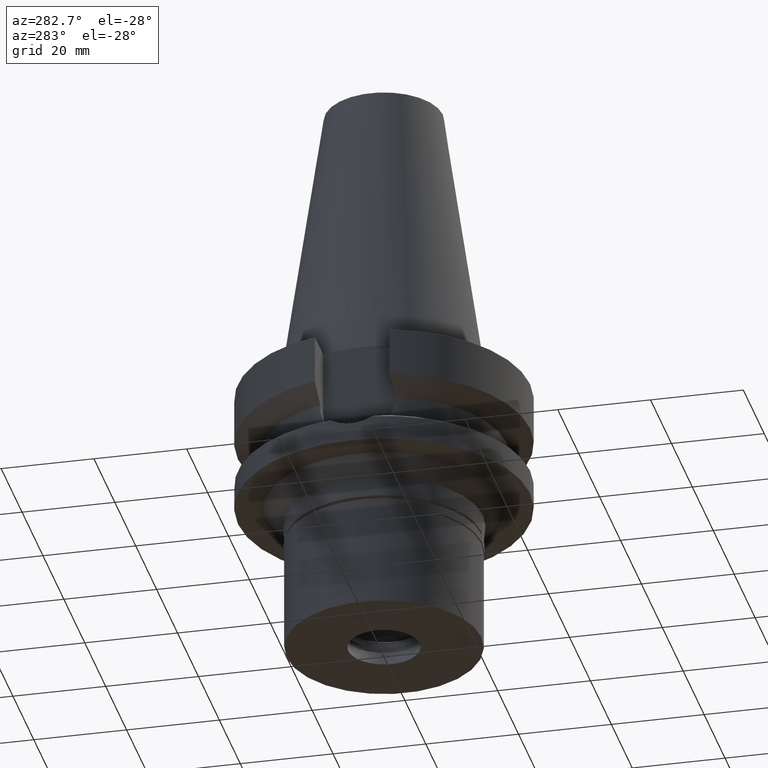
[diagram: clean part render]
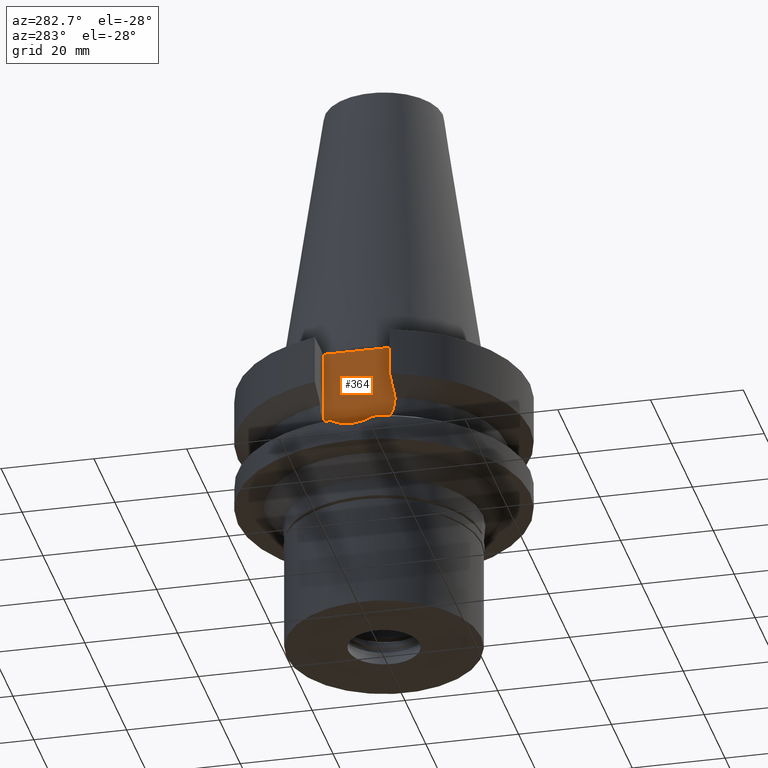
[diagram: same view with one face highlighted and labeled with its STEP entity id]
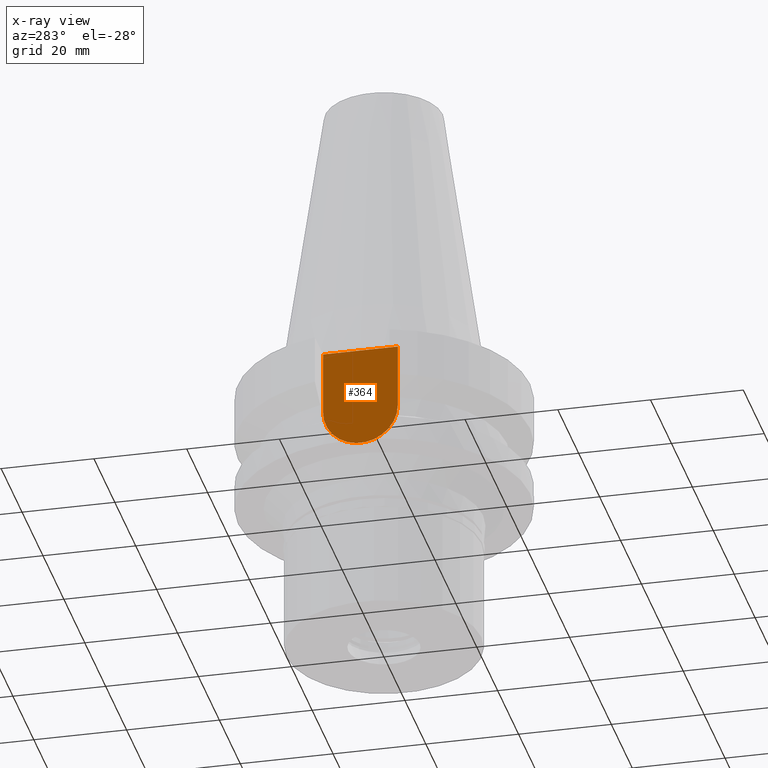
[diagram: x-ray of the same camera — body ghosted, the highlighted face saturated]
A machine part, auxiliary view. The second image highlights one B-rep face of the part: STEP entity #364.
The next image is the same camera in x-ray: the body ghosted, the highlighted face saturated — about 0% of this face is hidden behind the body in this view.
In plain terms, the highlighted planar face has unit normal (-1, 0, 0).
Its self-contained STEP definition (entity closure, byte-faithful):
#24 = LINE ( 'NONE', #254, #2375 ) ;
#88 = CARTESIAN_POINT ( 'NONE',  ( -22.50000000000000000, -8.050000000000000711, -1.000000000000000000 ) ) ;
#146 = CARTESIAN_POINT ( 'NONE',  ( -22.50000000000000000, 1.807578675540999863E-14, -14.94999999999999929 ) ) ;
#169 = VERTEX_POINT ( 'NONE', #88 ) ;
#213 = DIRECTION ( 'NONE',  ( 0.0000000000000000000, 1.000000000000000000, 0.0000000000000000000 ) ) ;
#254 = CARTESIAN_POINT ( 'NONE',  ( -22.50000000000000000, 8.050000000000000711, -14.94999999999999929 ) ) ;
#364 = ADVANCED_FACE ( 'NONE', ( #3041 ), #1559, .T. ) ;
#390 = DIRECTION ( 'NONE',  ( 0.0000000000000000000, 0.0000000000000000000, 1.000000000000000000 ) ) ;
#690 = VERTEX_POINT ( 'NONE', #2736 ) ;
#794 = VERTEX_POINT ( 'NONE', #1808 ) ;
#852 = DIRECTION ( 'NONE',  ( 0.0000000000000000000, 0.0000000000000000000, -1.000000000000000000 ) ) ;
#1009 = ORIENTED_EDGE ( 'NONE', *, *, #2097, .F. ) ;
#1121 = EDGE_CURVE ( 'NONE', #794, #690, #2435, .T. ) ;
#1169 = ORIENTED_EDGE ( 'NONE', *, *, #2263, .F. ) ;
#1189 = VECTOR ( 'NONE', #852, 1000.000000000000000 ) ;
#1245 = ORIENTED_EDGE ( 'NONE', *, *, #1121, .F. ) ;
#1249 = DIRECTION ( 'NONE',  ( 0.0000000000000000000, 0.0000000000000000000, -1.000000000000000000 ) ) ;
#1354 = CARTESIAN_POINT ( 'NONE',  ( -22.50000000000000000, -8.050000000000000711, -1.000000000000000000 ) ) ;
#1559 = PLANE ( 'NONE',  #1720 ) ;
#1720 = AXIS2_PLACEMENT_3D ( 'NONE', #2521, #2505, #390 ) ;
#1808 = CARTESIAN_POINT ( 'NONE',  ( -22.50000000000000000, -8.050000000000000711, -14.94999999999999929 ) ) ;
#1854 = CARTESIAN_POINT ( 'NONE',  ( -22.50000000000000000, -8.050000000000000711, -1.000000000000000000 ) ) ;
#2037 = VERTEX_POINT ( 'NONE', #2361 ) ;
#2097 = EDGE_CURVE ( 'NONE', #169, #794, #2551, .T. ) ;
#2241 = DIRECTION ( 'NONE',  ( 1.000000000000000000, 0.0000000000000000000, 0.0000000000000000000 ) ) ;
#2263 = EDGE_CURVE ( 'NONE', #690, #2037, #24, .T. ) ;
#2319 = EDGE_LOOP ( 'NONE', ( #1169, #1245, #1009, #2770 ) ) ;
#2334 = LINE ( 'NONE', #1354, #2483 ) ;
#2361 = CARTESIAN_POINT ( 'NONE',  ( -22.50000000000000000, 8.050000000000000711, -1.000000000000000000 ) ) ;
#2375 = VECTOR ( 'NONE', #2437, 1000.000000000000000 ) ;
#2435 = CIRCLE ( 'NONE', #2679, 8.050000000000000711 ) ;
#2437 = DIRECTION ( 'NONE',  ( 0.0000000000000000000, 0.0000000000000000000, 1.000000000000000000 ) ) ;
#2483 = VECTOR ( 'NONE', #213, 1000.000000000000000 ) ;
#2505 = DIRECTION ( 'NONE',  ( -1.000000000000000000, 0.0000000000000000000, 0.0000000000000000000 ) ) ;
#2521 = CARTESIAN_POINT ( 'NONE',  ( -22.50000000000000000, 2.173748068486999793E-14, 0.0000000000000000000 ) ) ;
#2551 = LINE ( 'NONE', #1854, #1189 ) ;
#2679 = AXIS2_PLACEMENT_3D ( 'NONE', #146, #2241, #1249 ) ;
#2736 = CARTESIAN_POINT ( 'NONE',  ( -22.50000000000000000, 8.050000000000000711, -14.94999999999999929 ) ) ;
#2770 = ORIENTED_EDGE ( 'NONE', *, *, #2773, .T. ) ;
#2773 = EDGE_CURVE ( 'NONE', #169, #2037, #2334, .T. ) ;
#3041 = FACE_OUTER_BOUND ( 'NONE', #2319, .T. ) ;